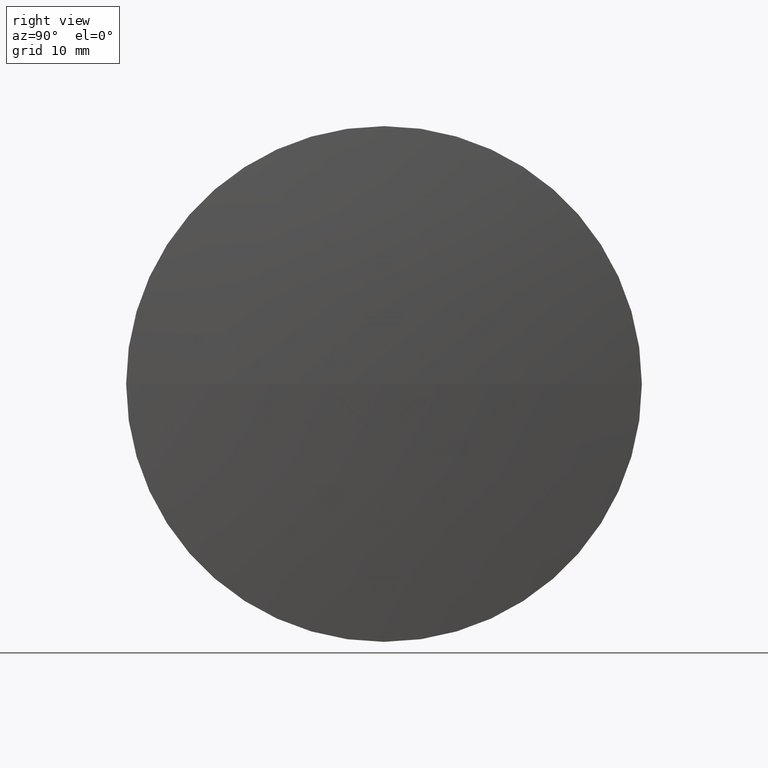
[diagram: clean part render]
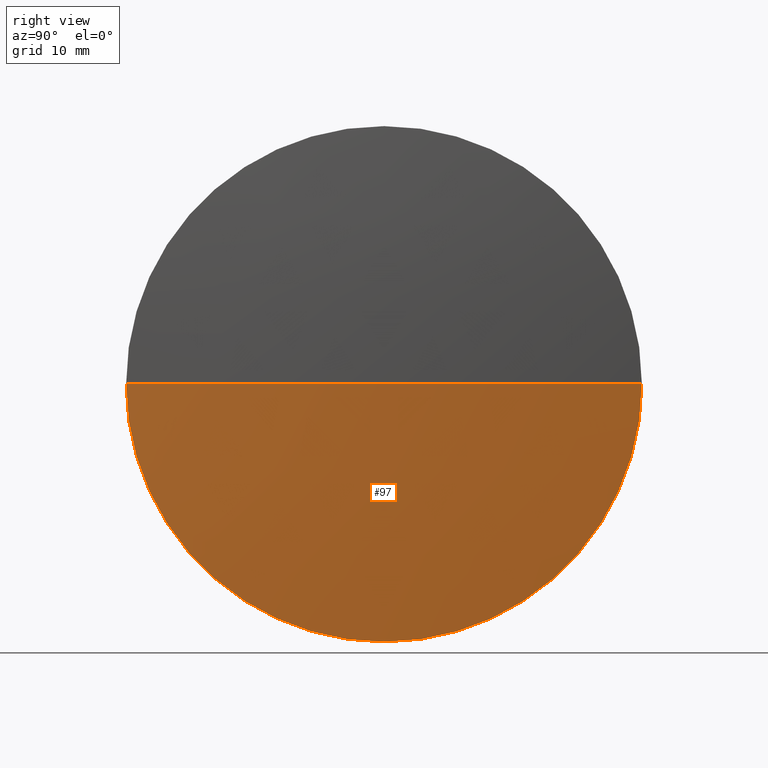
[diagram: same view with one face highlighted and labeled with its STEP entity id]
A machine part, right view. The second image highlights one B-rep face of the part: STEP entity #97.
In plain terms, the highlighted spherical surface has radius 269.424 mm.
Its self-contained STEP definition (entity closure, byte-faithful):
#1 = DIRECTION ( 'NONE',  ( 0.0000000000000000000, 0.0000000000000000000, 1.000000000000000000 ) ) ;
#2 = AXIS2_PLACEMENT_3D ( 'NONE', #316, #159, #51 ) ;
#27 = AXIS2_PLACEMENT_3D ( 'NONE', #215, #58, #1 ) ;
#35 = VERTEX_POINT ( 'NONE', #177 ) ;
#42 = VERTEX_POINT ( 'NONE', #65 ) ;
#45 = CIRCLE ( 'NONE', #2, 269.4236915733053500 ) ;
#46 = EDGE_LOOP ( 'NONE', ( #243, #86, #220, #171 ) ) ;
#49 = CARTESIAN_POINT ( 'NONE',  ( -93.80735659540891900, 97.23222604636887900, 0.0000000000000000000 ) ) ;
#51 = DIRECTION ( 'NONE',  ( 1.000000000000000000, 0.0000000000000000000, 0.0000000000000000000 ) ) ;
#56 = VERTEX_POINT ( 'NONE', #67 ) ;
#58 = DIRECTION ( 'NONE',  ( -1.000000000000000000, -0.0000000000000000000, -0.0000000000000000000 ) ) ;
#65 = CARTESIAN_POINT ( 'NONE',  ( 174.4163664064679400, 122.6322260463694200, 0.0000000000000000000 ) ) ;
#67 = CARTESIAN_POINT ( 'NONE',  ( 174.4163664064679400, 71.83222604636903000, -3.110602869834258700E-015 ) ) ;
#68 = AXIS2_PLACEMENT_3D ( 'NONE', #156, #233, #340 ) ;
#72 = DIRECTION ( 'NONE',  ( 0.0000000000000000000, 1.224646799147353200E-016, -1.000000000000000000 ) ) ;
#86 = ORIENTED_EDGE ( 'NONE', *, *, #94, .T. ) ;
#93 = DIRECTION ( 'NONE',  ( 0.0000000000000000000, 1.000000000000000000, 0.0000000000000000000 ) ) ;
#94 = EDGE_CURVE ( 'NONE', #272, #56, #202, .T. ) ;
#97 = ADVANCED_FACE ( 'NONE', ( #191 ), #333, .T. ) ;
#125 = DIRECTION ( 'NONE',  ( 0.0000000000000000000, 1.000000000000000000, 1.224646799147353500E-016 ) ) ;
#132 = CARTESIAN_POINT ( 'NONE',  ( 175.6163349778964600, 97.23222604636889300, 0.0000000000000000000 ) ) ;
#156 = CARTESIAN_POINT ( 'NONE',  ( 174.4163664064679400, 97.23222604636956100, 0.0000000000000000000 ) ) ;
#159 = DIRECTION ( 'NONE',  ( -0.0000000000000000000, 0.0000000000000000000, 1.000000000000000000 ) ) ;
#171 = ORIENTED_EDGE ( 'NONE', *, *, #298, .F. ) ;
#177 = CARTESIAN_POINT ( 'NONE',  ( 174.4163664064679400, 97.23222604636956100, -25.39999999999999100 ) ) ;
#190 = EDGE_CURVE ( 'NONE', #35, #56, #228, .T. ) ;
#191 = FACE_OUTER_BOUND ( 'NONE', #46, .T. ) ;
#202 = CIRCLE ( 'NONE', #255, 269.4236915733053500 ) ;
#215 = CARTESIAN_POINT ( 'NONE',  ( 174.4163664064679400, 97.23222604636956100, 0.0000000000000000000 ) ) ;
#220 = ORIENTED_EDGE ( 'NONE', *, *, #190, .F. ) ;
#228 = CIRCLE ( 'NONE', #68, 25.39999999999999100 ) ;
#233 = DIRECTION ( 'NONE',  ( -1.000000000000000000, -0.0000000000000000000, -0.0000000000000000000 ) ) ;
#243 = ORIENTED_EDGE ( 'NONE', *, *, #267, .F. ) ;
#254 = CARTESIAN_POINT ( 'NONE',  ( -93.80735659540891900, 97.23222604636887900, 0.0000000000000000000 ) ) ;
#255 = AXIS2_PLACEMENT_3D ( 'NONE', #254, #72, #125 ) ;
#267 = EDGE_CURVE ( 'NONE', #272, #42, #45, .T. ) ;
#272 = VERTEX_POINT ( 'NONE', #132 ) ;
#298 = EDGE_CURVE ( 'NONE', #42, #35, #344, .T. ) ;
#307 = DIRECTION ( 'NONE',  ( -0.0000000000000000000, 0.0000000000000000000, -1.000000000000000000 ) ) ;
#316 = CARTESIAN_POINT ( 'NONE',  ( -93.80735659540891900, 97.23222604636887900, 0.0000000000000000000 ) ) ;
#331 = AXIS2_PLACEMENT_3D ( 'NONE', #49, #307, #93 ) ;
#333 = SPHERICAL_SURFACE ( 'NONE', #331, 269.4236915733053500 ) ;
#340 = DIRECTION ( 'NONE',  ( 0.0000000000000000000, 0.0000000000000000000, 1.000000000000000000 ) ) ;
#344 = CIRCLE ( 'NONE', #27, 25.39999999999999100 ) ;